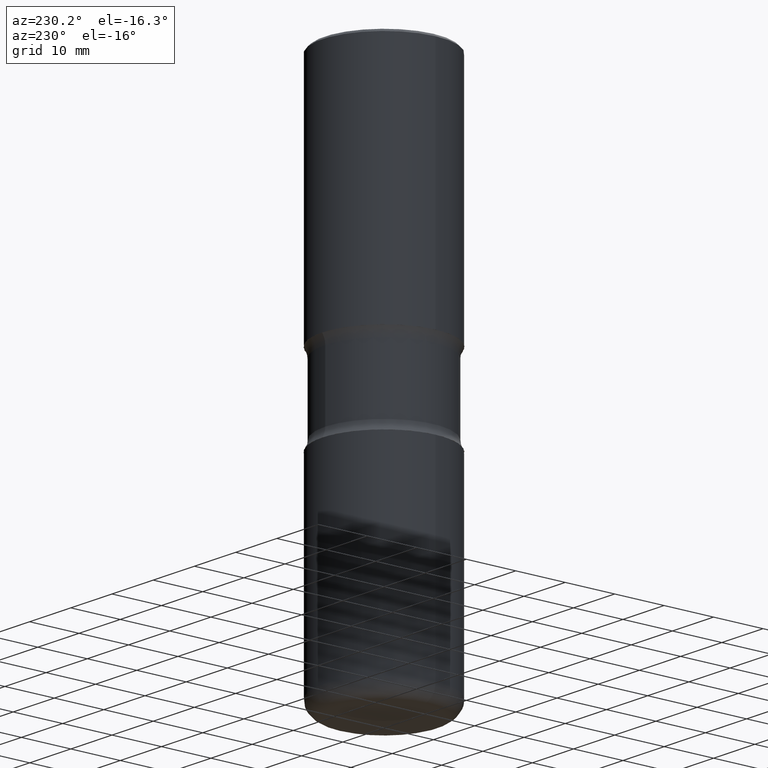
[diagram: clean part render]
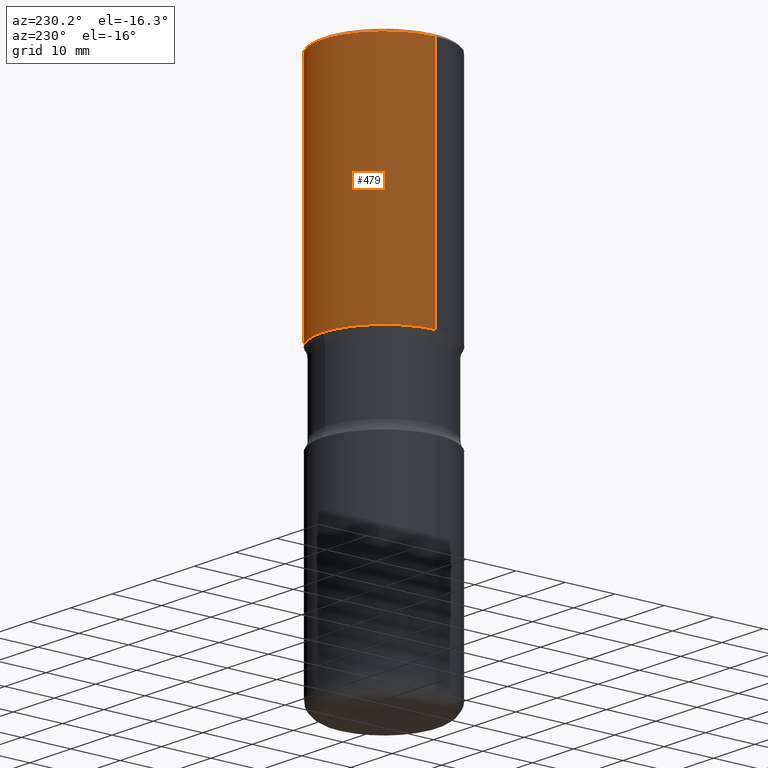
[diagram: same view with one face highlighted and labeled with its STEP entity id]
A machine part, auxiliary view. The second image highlights one B-rep face of the part: STEP entity #479.
In plain terms, the highlighted cylindrical surface (partial cylindrical patch) has radius 12.5006 mm, axis along (-0, 0, 1).
Its self-contained STEP definition (entity closure, byte-faithful):
#3 = DIRECTION ( 'NONE',  ( 1.000000000000000000, -6.982962677686266711E-15, 4.876176775795935793E-29 ) ) ;
#4 = VECTOR ( 'NONE', #324, 39.37007874015748143 ) ;
#6 = DIRECTION ( 'NONE',  ( -2.445468806185136597E-29, 3.491481338843145583E-15, 1.000000000000000000 ) ) ;
#8 = EDGE_CURVE ( 'NONE', #383, #194, #474, .T. ) ;
#12 = CARTESIAN_POINT ( 'NONE',  ( -0.4921500000000000874, 3.366835455046433267E-15, -0.02000000000000010103 ) ) ;
#21 = VECTOR ( 'NONE', #393, 39.37007874015748143 ) ;
#32 = ORIENTED_EDGE ( 'NONE', *, *, #342, .F. ) ;
#35 = VERTEX_POINT ( 'NONE', #178 ) ;
#43 = CARTESIAN_POINT ( 'NONE',  ( 4.890937612370298557E-31, -6.982962677686327354E-17, -0.02000000000000010103 ) ) ;
#80 = DIRECTION ( 'NONE',  ( -2.445468806185136597E-29, 3.491481338843145583E-15, 1.000000000000000000 ) ) ;
#83 = CARTESIAN_POINT ( 'NONE',  ( -0.4921500000000002539, 3.496936074043334869E-15, -2.420853904668952910E-29 ) ) ;
#88 = DIRECTION ( 'NONE',  ( 1.000000000000000000, -6.982962677686267499E-15, 0.000000000000000000 ) ) ;
#97 = CARTESIAN_POINT ( 'NONE',  ( 0.4921500000000003094, -1.003486651596907730E-14, -1.889800000000000368 ) ) ;
#106 = CARTESIAN_POINT ( 'NONE',  ( 0.4921500000000002539, -3.436665081823297749E-15, 2.399810400207971004E-29 ) ) ;
#118 = FACE_OUTER_BOUND ( 'NONE', #472, .T. ) ;
#126 = ORIENTED_EDGE ( 'NONE', *, *, #8, .F. ) ;
#170 = VERTEX_POINT ( 'NONE', #97 ) ;
#176 = DIRECTION ( 'NONE',  ( 1.000000000000000000, -6.982962677686265922E-15, 0.000000000000000000 ) ) ;
#178 = CARTESIAN_POINT ( 'NONE',  ( -0.4921500000000003650, 1.629205435820154164E-16, -1.889800000000000368 ) ) ;
#194 = VERTEX_POINT ( 'NONE', #12 ) ;
#211 = CARTESIAN_POINT ( 'NONE',  ( 4.621446949928671989E-29, -6.598201434145778368E-15, -1.889800000000000368 ) ) ;
#216 = LINE ( 'NONE', #83, #21 ) ;
#231 = AXIS2_PLACEMENT_3D ( 'NONE', #211, #80, #88 ) ;
#259 = AXIS2_PLACEMENT_3D ( 'NONE', #43, #6, #176 ) ;
#277 = CIRCLE ( 'NONE', #231, 0.4921500000000003094 ) ;
#303 = AXIS2_PLACEMENT_3D ( 'NONE', #433, #341, #3 ) ;
#324 = DIRECTION ( 'NONE',  ( -2.445468806185136877E-29, 3.491481338843145188E-15, 1.000000000000000000 ) ) ;
#341 = DIRECTION ( 'NONE',  ( -2.445468806185136597E-29, 3.491481338843145583E-15, 1.000000000000000000 ) ) ;
#342 = EDGE_CURVE ( 'NONE', #170, #383, #547, .T. ) ;
#383 = VERTEX_POINT ( 'NONE', #492 ) ;
#393 = DIRECTION ( 'NONE',  ( -2.445468806185136877E-29, 3.491481338843145188E-15, 1.000000000000000000 ) ) ;
#394 = ORIENTED_EDGE ( 'NONE', *, *, #424, .T. ) ;
#424 = EDGE_CURVE ( 'NONE', #35, #194, #216, .T. ) ;
#433 = CARTESIAN_POINT ( 'NONE',  ( 0.000000000000000000, 0.000000000000000000, 0.000000000000000000 ) ) ;
#442 = EDGE_CURVE ( 'NONE', #170, #35, #277, .T. ) ;
#472 = EDGE_LOOP ( 'NONE', ( #560, #394, #126, #32 ) ) ;
#474 = CIRCLE ( 'NONE', #259, 0.4921500000000000874 ) ;
#479 = ADVANCED_FACE ( 'NONE', ( #118 ), #552, .T. ) ;
#492 = CARTESIAN_POINT ( 'NONE',  ( 0.4921500000000000874, -3.446223716380123532E-15, -0.02000000000000010103 ) ) ;
#547 = LINE ( 'NONE', #106, #4 ) ;
#552 = CYLINDRICAL_SURFACE ( 'NONE', #303, 0.4921500000000002539 ) ;
#560 = ORIENTED_EDGE ( 'NONE', *, *, #442, .T. ) ;